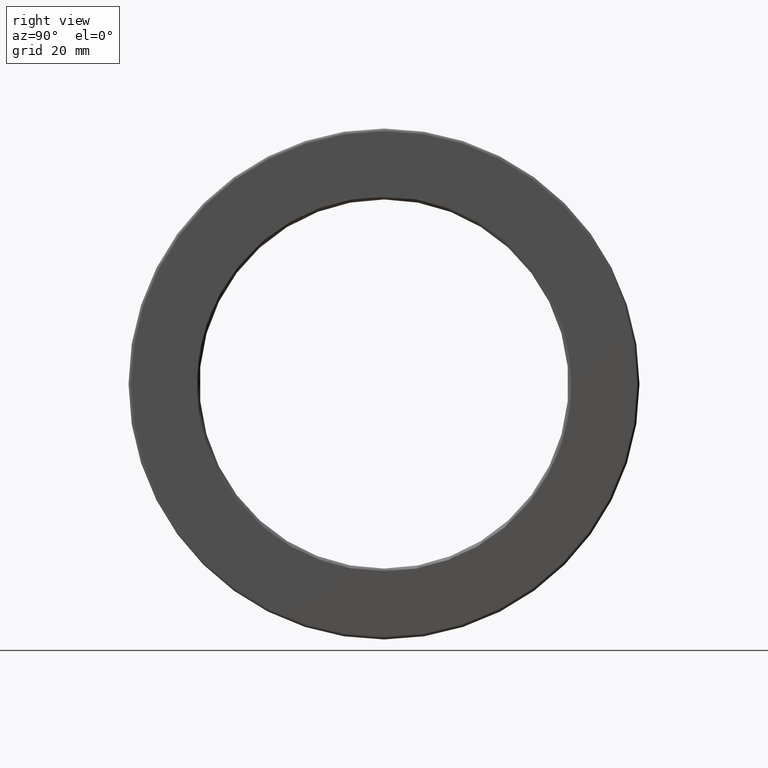
[diagram: clean part render]
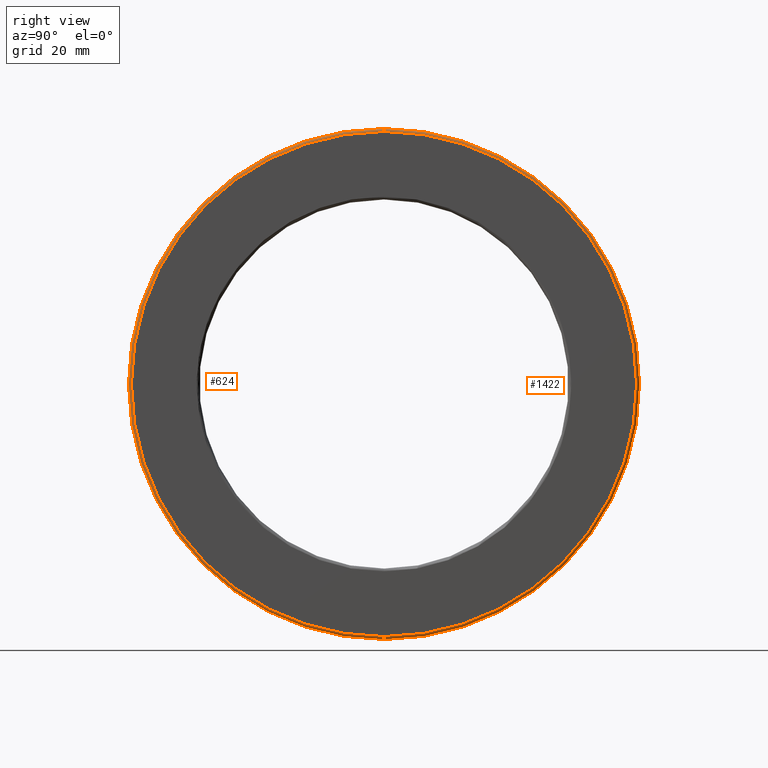
[diagram: same view with one multi-face feature highlighted, each face labeled with its STEP entity id]
A machine part, right view. The highlighted faces form ONE feature: a constant-radius fillet chain: 2 tangent blend faces with common blend radius 0.508 mm. The faces share edges in the B-rep.
Their STEP definitions:
[1] entity #624 (Torus):
#9 = DIRECTION ( 'NONE',  ( -0.0000000000000000000, 1.000000000000000000, 1.224646799147353207E-16 ) ) ;
#80 = VERTEX_POINT ( 'NONE', #1709 ) ;
#243 = CARTESIAN_POINT ( 'NONE',  ( 0.3935000000000000719, 2.157215336698062520E-16, -1.751499999999999835 ) ) ;
#283 = CARTESIAN_POINT ( 'NONE',  ( 0.3735000000000003317, 2.144968868706589015E-16, -1.751499999999999835 ) ) ;
#334 = VERTEX_POINT ( 'NONE', #243 ) ;
#342 = DIRECTION ( 'NONE',  ( -1.000000000000000000, -0.0000000000000000000, -0.0000000000000000000 ) ) ;
#358 = AXIS2_PLACEMENT_3D ( 'NONE', #1160, #342, #1308 ) ;
#396 = AXIS2_PLACEMENT_3D ( 'NONE', #283, #9, #1100 ) ;
#397 = CIRCLE ( 'NONE', #883, 1.751499999999999835 ) ;
#446 = FACE_OUTER_BOUND ( 'NONE', #812, .T. ) ;
#484 = DIRECTION ( 'NONE',  ( 0.0000000000000000000, 0.0000000000000000000, 1.000000000000000000 ) ) ;
#498 = VERTEX_POINT ( 'NONE', #1378 ) ;
#506 = EDGE_CURVE ( 'NONE', #334, #924, #1614, .T. ) ;
#517 = ORIENTED_EDGE ( 'NONE', *, *, #1140, .T. ) ;
#524 = ORIENTED_EDGE ( 'NONE', *, *, #506, .F. ) ;
#621 = ORIENTED_EDGE ( 'NONE', *, *, #1512, .F. ) ;
#624 = ADVANCED_FACE ( 'NONE', ( #446 ), #1501, .T. ) ;
#803 = CIRCLE ( 'NONE', #1763, 0.01999999999999978531 ) ;
#812 = EDGE_LOOP ( 'NONE', ( #524, #1782, #517, #621 ) ) ;
#845 = DIRECTION ( 'NONE',  ( -1.000000000000000000, -0.0000000000000000000, -0.0000000000000000000 ) ) ;
#883 = AXIS2_PLACEMENT_3D ( 'NONE', #1740, #913, #484 ) ;
#913 = DIRECTION ( 'NONE',  ( -1.000000000000000000, -0.0000000000000000000, -0.0000000000000000000 ) ) ;
#924 = VERTEX_POINT ( 'NONE', #1375 ) ;
#970 = CARTESIAN_POINT ( 'NONE',  ( 0.3735000000000003317, 0.0000000000000000000, 0.0000000000000000000 ) ) ;
#978 = DIRECTION ( 'NONE',  ( 0.0000000000000000000, 0.0000000000000000000, 1.000000000000000000 ) ) ;
#1026 = AXIS2_PLACEMENT_3D ( 'NONE', #970, #845, #978 ) ;
#1100 = DIRECTION ( 'NONE',  ( 0.0000000000000000000, -1.224646799147355919E-16, 1.000000000000000000 ) ) ;
#1140 = EDGE_CURVE ( 'NONE', #80, #498, #803, .T. ) ;
#1156 = CIRCLE ( 'NONE', #1026, 1.771499999999999631 ) ;
#1160 = CARTESIAN_POINT ( 'NONE',  ( 0.3735000000000003317, 0.0000000000000000000, 0.0000000000000000000 ) ) ;
#1180 = EDGE_CURVE ( 'NONE', #334, #80, #397, .T. ) ;
#1308 = DIRECTION ( 'NONE',  ( 0.0000000000000000000, 0.0000000000000000000, 1.000000000000000000 ) ) ;
#1375 = CARTESIAN_POINT ( 'NONE',  ( 0.3735000000000003317, 2.169461804689536025E-16, -1.771499999999999631 ) ) ;
#1378 = CARTESIAN_POINT ( 'NONE',  ( 0.3735000000000003317, 0.0000000000000000000, 1.771499999999999631 ) ) ;
#1501 = TOROIDAL_SURFACE ( 'NONE', #358, 1.751499999999999835, 0.01999999999999975409 ) ;
#1512 = EDGE_CURVE ( 'NONE', #924, #498, #1156, .T. ) ;
#1563 = DIRECTION ( 'NONE',  ( 0.0000000000000000000, 0.0000000000000000000, -1.000000000000000000 ) ) ;
#1614 = CIRCLE ( 'NONE', #396, 0.01999999999999978531 ) ;
#1695 = DIRECTION ( 'NONE',  ( 0.0000000000000000000, -1.000000000000000000, 0.0000000000000000000 ) ) ;
#1709 = CARTESIAN_POINT ( 'NONE',  ( 0.3935000000000000719, 0.0000000000000000000, 1.751499999999999835 ) ) ;
#1715 = CARTESIAN_POINT ( 'NONE',  ( 0.3735000000000003317, 0.0000000000000000000, 1.751499999999999835 ) ) ;
#1740 = CARTESIAN_POINT ( 'NONE',  ( 0.3935000000000000719, 0.0000000000000000000, 0.0000000000000000000 ) ) ;
#1763 = AXIS2_PLACEMENT_3D ( 'NONE', #1715, #1695, #1563 ) ;
#1782 = ORIENTED_EDGE ( 'NONE', *, *, #1180, .T. ) ;
[2] entity #1422 (Torus):
#9 = DIRECTION ( 'NONE',  ( -0.0000000000000000000, 1.000000000000000000, 1.224646799147353207E-16 ) ) ;
#50 = CIRCLE ( 'NONE', #118, 1.751499999999999835 ) ;
#80 = VERTEX_POINT ( 'NONE', #1709 ) ;
#118 = AXIS2_PLACEMENT_3D ( 'NONE', #1788, #1654, #1368 ) ;
#189 = EDGE_LOOP ( 'NONE', ( #522, #287, #288, #958 ) ) ;
#243 = CARTESIAN_POINT ( 'NONE',  ( 0.3935000000000000719, 2.157215336698062520E-16, -1.751499999999999835 ) ) ;
#283 = CARTESIAN_POINT ( 'NONE',  ( 0.3735000000000003317, 2.144968868706589015E-16, -1.751499999999999835 ) ) ;
#287 = ORIENTED_EDGE ( 'NONE', *, *, #506, .T. ) ;
#288 = ORIENTED_EDGE ( 'NONE', *, *, #1072, .F. ) ;
#304 = DIRECTION ( 'NONE',  ( -1.000000000000000000, -0.0000000000000000000, -0.0000000000000000000 ) ) ;
#317 = CARTESIAN_POINT ( 'NONE',  ( 0.3735000000000003317, 0.0000000000000000000, 0.0000000000000000000 ) ) ;
#334 = VERTEX_POINT ( 'NONE', #243 ) ;
#396 = AXIS2_PLACEMENT_3D ( 'NONE', #283, #9, #1100 ) ;
#498 = VERTEX_POINT ( 'NONE', #1378 ) ;
#506 = EDGE_CURVE ( 'NONE', #334, #924, #1614, .T. ) ;
#522 = ORIENTED_EDGE ( 'NONE', *, *, #806, .T. ) ;
#803 = CIRCLE ( 'NONE', #1763, 0.01999999999999978531 ) ;
#806 = EDGE_CURVE ( 'NONE', #80, #334, #50, .T. ) ;
#826 = FACE_OUTER_BOUND ( 'NONE', #189, .T. ) ;
#924 = VERTEX_POINT ( 'NONE', #1375 ) ;
#958 = ORIENTED_EDGE ( 'NONE', *, *, #1140, .F. ) ;
#1072 = EDGE_CURVE ( 'NONE', #498, #924, #1416, .T. ) ;
#1100 = DIRECTION ( 'NONE',  ( 0.0000000000000000000, -1.224646799147355919E-16, 1.000000000000000000 ) ) ;
#1140 = EDGE_CURVE ( 'NONE', #80, #498, #803, .T. ) ;
#1207 = AXIS2_PLACEMENT_3D ( 'NONE', #317, #304, #1706 ) ;
#1228 = TOROIDAL_SURFACE ( 'NONE', #1531, 1.751499999999999835, 0.01999999999999975409 ) ;
#1368 = DIRECTION ( 'NONE',  ( 0.0000000000000000000, 0.0000000000000000000, 1.000000000000000000 ) ) ;
#1375 = CARTESIAN_POINT ( 'NONE',  ( 0.3735000000000003317, 2.169461804689536025E-16, -1.771499999999999631 ) ) ;
#1378 = CARTESIAN_POINT ( 'NONE',  ( 0.3735000000000003317, 0.0000000000000000000, 1.771499999999999631 ) ) ;
#1416 = CIRCLE ( 'NONE', #1207, 1.771499999999999631 ) ;
#1422 = ADVANCED_FACE ( 'NONE', ( #826 ), #1228, .T. ) ;
#1475 = CARTESIAN_POINT ( 'NONE',  ( 0.3735000000000003317, 0.0000000000000000000, 0.0000000000000000000 ) ) ;
#1531 = AXIS2_PLACEMENT_3D ( 'NONE', #1475, #1630, #1648 ) ;
#1563 = DIRECTION ( 'NONE',  ( 0.0000000000000000000, 0.0000000000000000000, -1.000000000000000000 ) ) ;
#1614 = CIRCLE ( 'NONE', #396, 0.01999999999999978531 ) ;
#1630 = DIRECTION ( 'NONE',  ( -1.000000000000000000, -0.0000000000000000000, -0.0000000000000000000 ) ) ;
#1648 = DIRECTION ( 'NONE',  ( 0.0000000000000000000, 0.0000000000000000000, 1.000000000000000000 ) ) ;
#1654 = DIRECTION ( 'NONE',  ( -1.000000000000000000, -0.0000000000000000000, -0.0000000000000000000 ) ) ;
#1695 = DIRECTION ( 'NONE',  ( 0.0000000000000000000, -1.000000000000000000, 0.0000000000000000000 ) ) ;
#1706 = DIRECTION ( 'NONE',  ( 0.0000000000000000000, 0.0000000000000000000, 1.000000000000000000 ) ) ;
#1709 = CARTESIAN_POINT ( 'NONE',  ( 0.3935000000000000719, 0.0000000000000000000, 1.751499999999999835 ) ) ;
#1715 = CARTESIAN_POINT ( 'NONE',  ( 0.3735000000000003317, 0.0000000000000000000, 1.751499999999999835 ) ) ;
#1763 = AXIS2_PLACEMENT_3D ( 'NONE', #1715, #1695, #1563 ) ;
#1788 = CARTESIAN_POINT ( 'NONE',  ( 0.3935000000000000719, 0.0000000000000000000, 0.0000000000000000000 ) ) ;